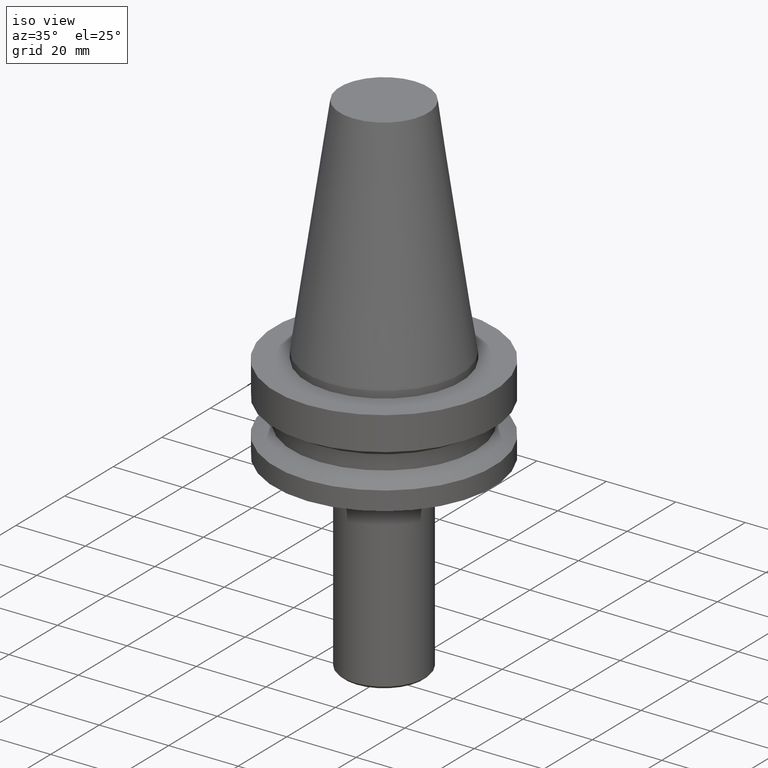
[diagram: clean part render]
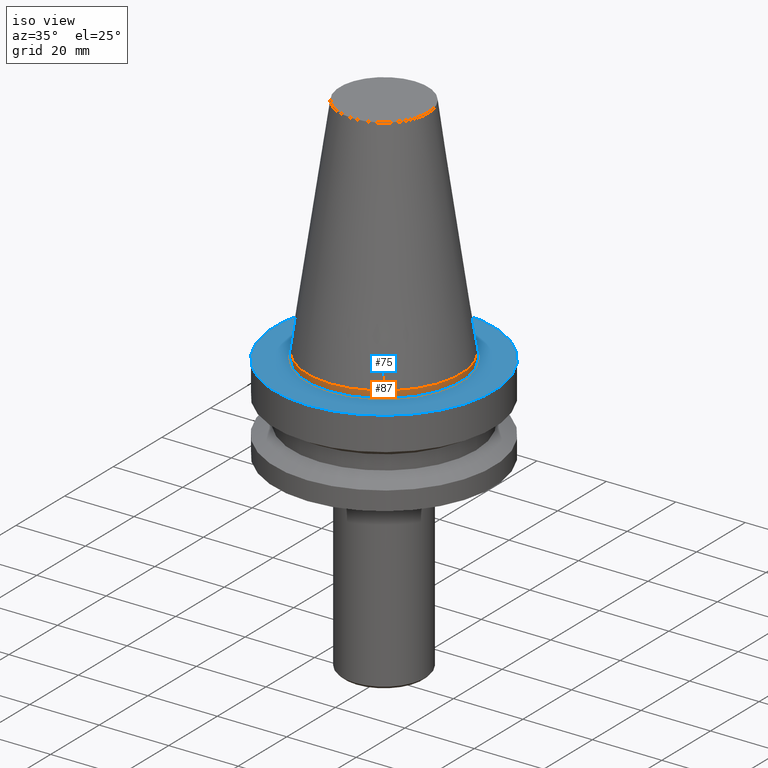
[diagram: same view with the hole feature highlighted: cylindrical wall and planar end face, labeled with their STEP entity ids]
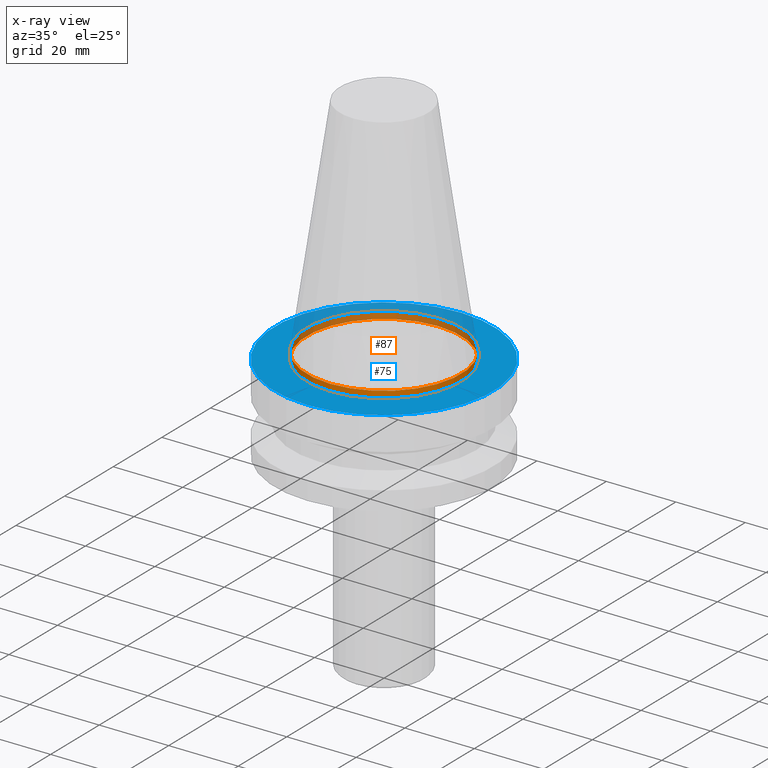
[diagram: x-ray of the same camera — body ghosted, the hole faces saturated]
A machine part, iso view. The highlighted faces form one hole feature of diameter 44.45 mm: the cylindrical wall (entity #87, orange) and its adjacent planar end face (entity #75, blue) — they share a circular edge in the B-rep.
The next image is the same camera in x-ray (body ghosted, the hole faces saturated) — the bore reads through the body.
Wall:
#87=ADVANCED_FACE('',(#124,#125),#126,.T.);
#124=FACE_BOUND('',#164,.T.);
#125=FACE_BOUND('',#165,.T.);
#126=CYLINDRICAL_SURFACE('',#166,22.225);
#164=EDGE_LOOP('',(#228));
#165=EDGE_LOOP('',(#229));
#166=AXIS2_PLACEMENT_3D('',#230,#231,#232);
#228=ORIENTED_EDGE('',*,*,#250,.F.);
#229=ORIENTED_EDGE('',*,*,#239,.T.);
#230=CARTESIAN_POINT('',(6.12323399573677E-017,1.22464679914735E-016,-1.0));
#231=DIRECTION('',(6.12323399573677E-017,1.22464679914735E-016,-1.0));
#232=DIRECTION('',(-1.23259516440783E-032,1.0,1.22464679914735E-016));
#239=EDGE_CURVE('',#253,#253,#254,.T.);
#250=EDGE_CURVE('',#275,#275,#276,.T.);
#253=VERTEX_POINT('',#279);
#254=CIRCLE('',#280,22.225);
#275=VERTEX_POINT('',#301);
#276=CIRCLE('',#302,22.225);
#279=CARTESIAN_POINT('',(1.22464679914735E-016,22.225,-2.0));
#280=AXIS2_PLACEMENT_3D('',#306,#307,#308);
#301=CARTESIAN_POINT('',(-2.73944275289641E-031,22.225,2.72177751110499E-015));
#302=AXIS2_PLACEMENT_3D('',#339,#340,#341);
#306=CARTESIAN_POINT('',(1.22464679914735E-016,2.44929359829471E-016,-2.0));
#307=DIRECTION('',(-6.12323399573677E-017,-1.22464679914735E-016,1.0));
#308=DIRECTION('',(-1.23259516440783E-032,1.0,1.22464679914735E-016));
#339=CARTESIAN_POINT('',(0.0,0.0,0.0));
#340=DIRECTION('',(-6.12323399573677E-017,-1.22464679914735E-016,1.0));
#341=DIRECTION('',(-1.23259516440783E-032,1.0,1.22464679914735E-016));
End face:
#75=ADVANCED_FACE('',(#90,#91),#92,.T.);
#90=FACE_OUTER_BOUND('',#130,.T.);
#91=FACE_BOUND('',#131,.T.);
#92=PLANE('',#132);
#130=EDGE_LOOP('',(#170));
#131=EDGE_LOOP('',(#171));
#132=AXIS2_PLACEMENT_3D('',#172,#173,#174);
#170=ORIENTED_EDGE('',*,*,#238,.T.);
#171=ORIENTED_EDGE('',*,*,#239,.F.);
#172=CARTESIAN_POINT('',(1.22464679914735E-016,11.1125,-2.0));
#173=DIRECTION('',(-6.12323399573677E-017,-1.22464679914735E-016,1.0));
#174=DIRECTION('',(-1.23259516440783E-032,1.0,1.22464679914735E-016));
#238=EDGE_CURVE('',#251,#251,#252,.T.);
#239=EDGE_CURVE('',#253,#253,#254,.T.);
#251=VERTEX_POINT('',#277);
#252=CIRCLE('',#278,31.5000000000001);
#253=VERTEX_POINT('',#279);
#254=CIRCLE('',#280,22.225);
#277=CARTESIAN_POINT('',(1.22464679914735E-016,31.5000000000001,-2.0));
#278=AXIS2_PLACEMENT_3D('',#303,#304,#305);
#279=CARTESIAN_POINT('',(1.22464679914735E-016,22.225,-2.0));
#280=AXIS2_PLACEMENT_3D('',#306,#307,#308);
#303=CARTESIAN_POINT('',(1.22464679914735E-016,2.44929359829471E-016,-2.0));
#304=DIRECTION('',(-6.12323399573677E-017,-1.22464679914735E-016,1.0));
#305=DIRECTION('',(-1.23259516440783E-032,1.0,1.22464679914735E-016));
#306=CARTESIAN_POINT('',(1.22464679914735E-016,2.44929359829471E-016,-2.0));
#307=DIRECTION('',(-6.12323399573677E-017,-1.22464679914735E-016,1.0));
#308=DIRECTION('',(-1.23259516440783E-032,1.0,1.22464679914735E-016));